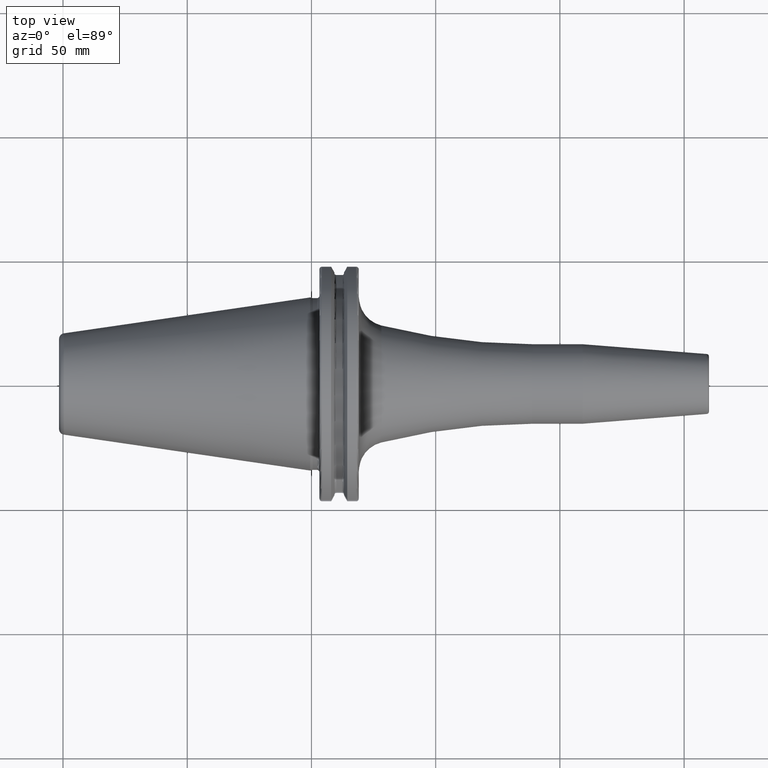
[diagram: clean part render]
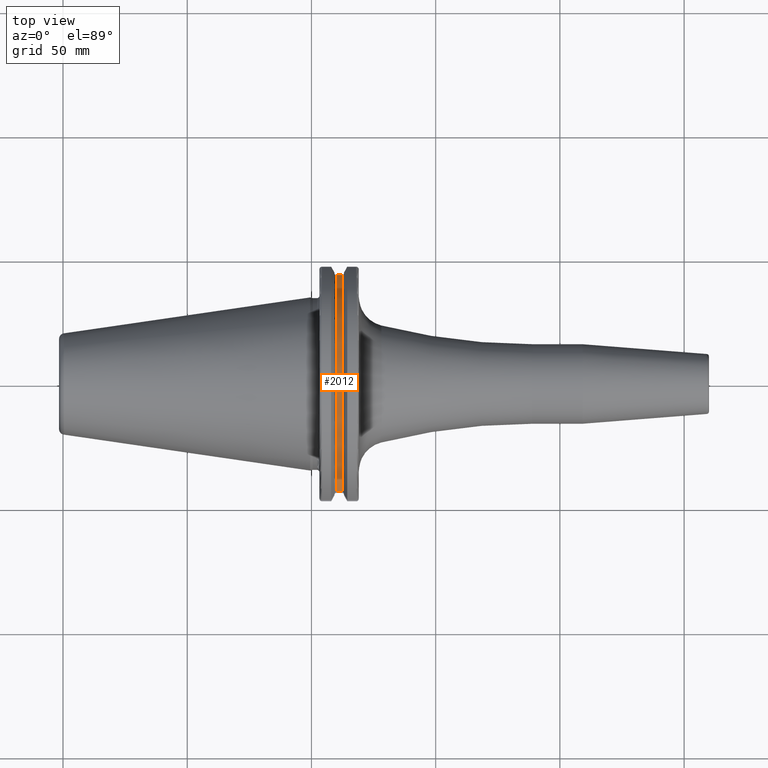
[diagram: same view with one face highlighted and labeled with its STEP entity id]
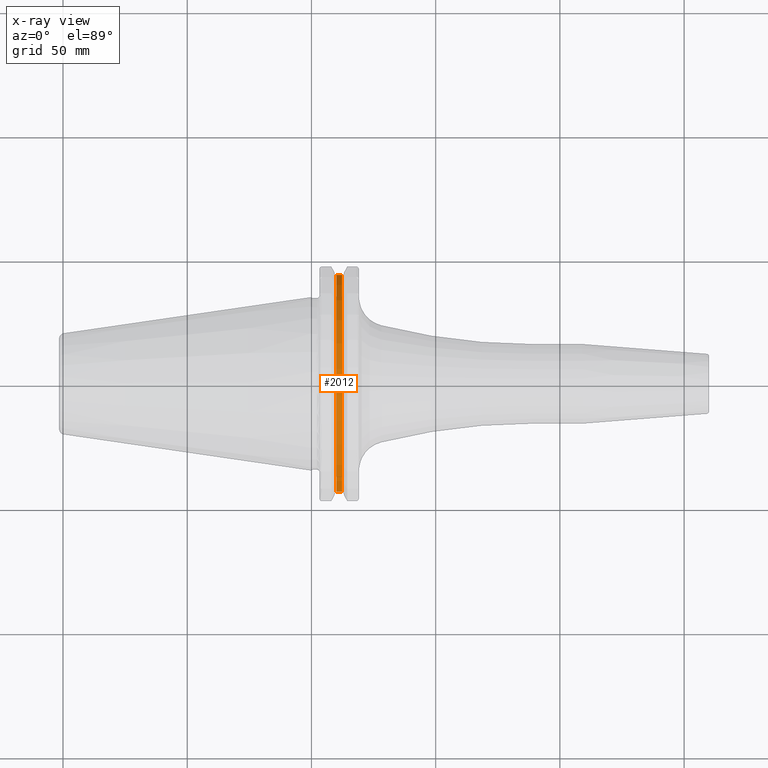
[diagram: x-ray of the same camera — body ghosted, the highlighted face saturated]
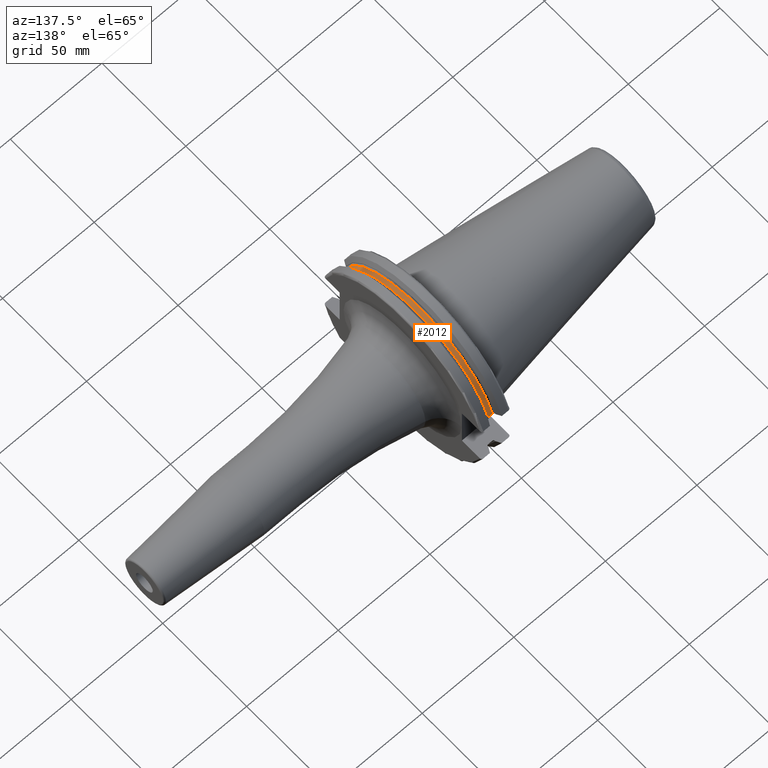
[diagram: same view with one face highlighted and labeled with its STEP entity id]
A machine part, top view. The second image highlights one B-rep face of the part: STEP entity #2012.
The next image is the same camera in x-ray: the body ghosted, the highlighted face saturated — about 0% of this face is hidden behind the body in this view.
A second angle (auxiliary view) of the same face is appended — the face is thin or edge-on in the first view.
In plain terms, the highlighted cylindrical surface (partial cylindrical patch) has radius 45.5 mm, axis along (1, 0, 0).
Its self-contained STEP definition (entity closure, byte-faithful):
#351=CARTESIAN_POINT('',(1.00125E1,4.363301502303E1,1.29E1));
#371=CARTESIAN_POINT('',(1.00125E1,-4.363301502303E1,1.29E1));
#378=DIRECTION('',(1.E0,0.E0,0.E0));
#379=VECTOR('',#378,2.325E0);
#380=CARTESIAN_POINT('',(1.00125E1,4.363301502303E1,1.29E1));
#381=LINE('',#380,#379);
#382=DIRECTION('',(1.E0,0.E0,0.E0));
#383=VECTOR('',#382,2.325E0);
#384=CARTESIAN_POINT('',(1.00125E1,-4.363301502303E1,1.29E1));
#385=LINE('',#384,#383);
#386=CARTESIAN_POINT('',(1.00125E1,0.E0,0.E0));
#387=DIRECTION('',(1.E0,0.E0,0.E0));
#388=DIRECTION('',(0.E0,9.589673631435E-1,2.835164835165E-1));
#389=AXIS2_PLACEMENT_3D('',#386,#387,#388);
#413=CARTESIAN_POINT('',(1.23375E1,0.E0,0.E0));
#414=DIRECTION('',(1.E0,0.E0,0.E0));
#415=DIRECTION('',(0.E0,9.589673631435E-1,2.835164835165E-1));
#416=AXIS2_PLACEMENT_3D('',#413,#414,#415);
#1314=VERTEX_POINT('',#351);
#1315=VERTEX_POINT('',#371);
#1316=CARTESIAN_POINT('',(1.23375E1,4.363301502303E1,1.29E1));
#1317=VERTEX_POINT('',#1316);
#1318=CARTESIAN_POINT('',(1.23375E1,-4.363301502303E1,1.29E1));
#1319=VERTEX_POINT('',#1318);
#2000=CARTESIAN_POINT('',(7.325E0,0.E0,0.E0));
#2001=DIRECTION('',(1.E0,0.E0,0.E0));
#2002=DIRECTION('',(0.E0,-1.E0,0.E0));
#2003=AXIS2_PLACEMENT_3D('',#2000,#2001,#2002);
#2004=CYLINDRICAL_SURFACE('',#2003,4.55E1);
#2005=ORIENTED_EDGE('',*,*,#1934,.T.);
#2007=ORIENTED_EDGE('',*,*,#2006,.T.);
#2008=ORIENTED_EDGE('',*,*,#1963,.F.);
#2009=ORIENTED_EDGE('',*,*,#1993,.F.);
#2010=EDGE_LOOP('',(#2005,#2007,#2008,#2009));
#2011=FACE_OUTER_BOUND('',#2010,.F.);
#2012=ADVANCED_FACE('',(#2011),#2004,.T.);
#390=CIRCLE('',#389,4.55E1);
#417=CIRCLE('',#416,4.55E1);
#1934=EDGE_CURVE('',#1314,#1317,#381,.T.);
#1963=EDGE_CURVE('',#1315,#1319,#385,.T.);
#1993=EDGE_CURVE('',#1314,#1315,#390,.T.);
#2006=EDGE_CURVE('',#1317,#1319,#417,.T.);